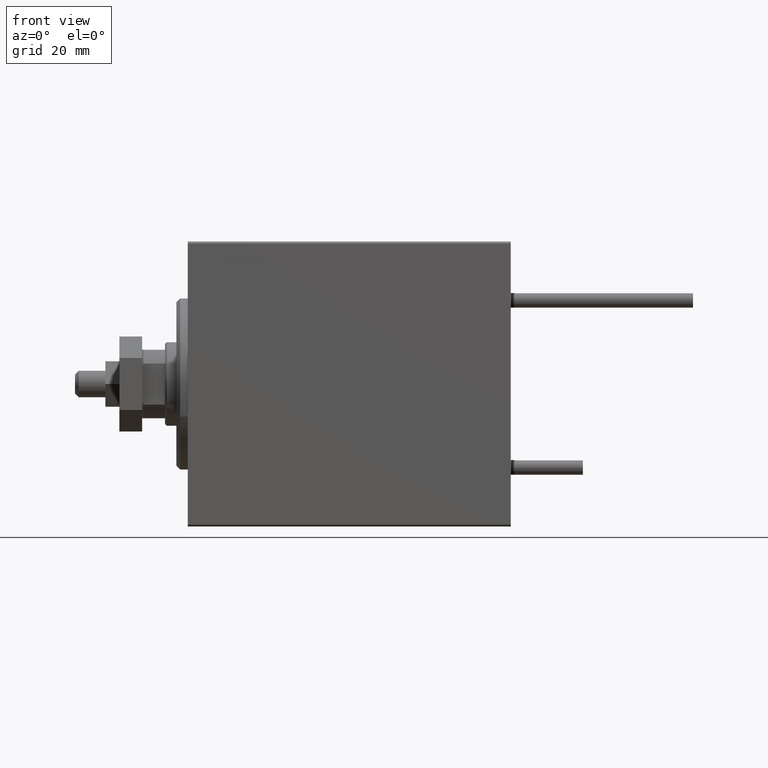
[diagram: clean part render]
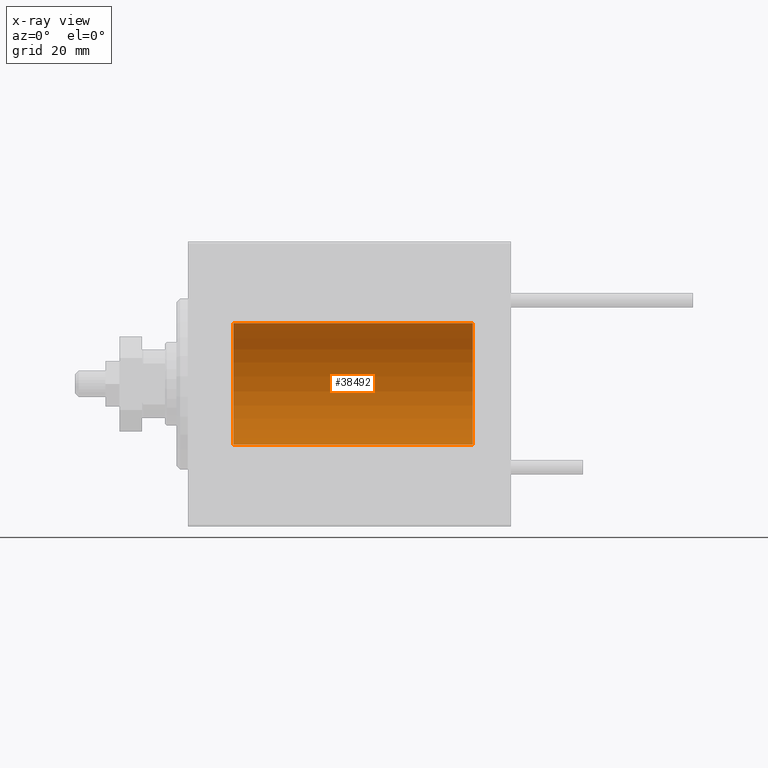
[diagram: x-ray — body ghosted, one internal face saturated and labeled with its STEP entity id]
A machine part, front view, then the same camera in x-ray: the body is ghosted and one INTERNAL B-rep face — a face not visible from any outside direction — is saturated and labeled: STEP entity #38492.
In plain terms, the highlighted cylindrical surface (partial cylindrical patch) has radius 16 mm, axis along (-1, -0, -0).
Its self-contained STEP definition (entity closure, byte-faithful):
#797 = CARTESIAN_POINT ( 'NONE',  ( 75.00000000000000000, 1.959434878635765131E-15, -16.00000000000000000 ) ) ;
#1518 = DIRECTION ( 'NONE',  ( -1.000000000000000000, -0.000000000000000000, -0.000000000000000000 ) ) ;
#2060 = EDGE_CURVE ( 'NONE', #39630, #36622, #11472, .T. ) ;
#2685 = CIRCLE ( 'NONE', #8306, 16.00000000000000000 ) ;
#3511 = DIRECTION ( 'NONE',  ( -1.000000000000000000, 0.000000000000000000, 0.000000000000000000 ) ) ;
#4800 = ORIENTED_EDGE ( 'NONE', *, *, #2060, .T. ) ;
#5037 = CARTESIAN_POINT ( 'NONE',  ( 75.00000000000000000, 0.000000000000000000, 16.00000000000000000 ) ) ;
#8306 = AXIS2_PLACEMENT_3D ( 'NONE', #40452, #21290, #33125 ) ;
#8345 = VECTOR ( 'NONE', #31773, 1000.000000000000000 ) ;
#8842 = DIRECTION ( 'NONE',  ( 0.000000000000000000, 0.000000000000000000, 1.000000000000000000 ) ) ;
#8987 = DIRECTION ( 'NONE',  ( -1.000000000000000000, -0.000000000000000000, -0.000000000000000000 ) ) ;
#9290 = EDGE_CURVE ( 'NONE', #27114, #39630, #31932, .T. ) ;
#11472 = CIRCLE ( 'NONE', #39649, 16.00000000000000000 ) ;
#12711 = EDGE_CURVE ( 'NONE', #27114, #48449, #2685, .T. ) ;
#12879 = FACE_OUTER_BOUND ( 'NONE', #26901, .T. ) ;
#14030 = EDGE_CURVE ( 'NONE', #48449, #36622, #19692, .T. ) ;
#18672 = CARTESIAN_POINT ( 'NONE',  ( 11.99999999999999645, 0.000000000000000000, 0.000000000000000000 ) ) ;
#19692 = LINE ( 'NONE', #39102, #8345 ) ;
#21290 = DIRECTION ( 'NONE',  ( -1.000000000000000000, 0.000000000000000000, 0.000000000000000000 ) ) ;
#26901 = EDGE_LOOP ( 'NONE', ( #32771, #28784, #49668, #4800 ) ) ;
#27114 = VERTEX_POINT ( 'NONE', #5037 ) ;
#27917 = CARTESIAN_POINT ( 'NONE',  ( 11.99999999999999645, 1.959434878635765131E-15, -16.00000000000000000 ) ) ;
#28784 = ORIENTED_EDGE ( 'NONE', *, *, #12711, .F. ) ;
#29945 = VECTOR ( 'NONE', #8987, 1000.000000000000000 ) ;
#30258 = DIRECTION ( 'NONE',  ( 0.000000000000000000, 0.000000000000000000, 1.000000000000000000 ) ) ;
#31773 = DIRECTION ( 'NONE',  ( -1.000000000000000000, -0.000000000000000000, -0.000000000000000000 ) ) ;
#31932 = LINE ( 'NONE', #47354, #29945 ) ;
#32771 = ORIENTED_EDGE ( 'NONE', *, *, #14030, .F. ) ;
#33125 = DIRECTION ( 'NONE',  ( 0.000000000000000000, 0.000000000000000000, 1.000000000000000000 ) ) ;
#36622 = VERTEX_POINT ( 'NONE', #27917 ) ;
#38492 = ADVANCED_FACE ( 'NONE', ( #12879 ), #44393, .F. ) ;
#39102 = CARTESIAN_POINT ( 'NONE',  ( 75.00000000000000000, 1.959434878635765131E-15, -16.00000000000000000 ) ) ;
#39630 = VERTEX_POINT ( 'NONE', #43332 ) ;
#39649 = AXIS2_PLACEMENT_3D ( 'NONE', #18672, #3511, #30258 ) ;
#40114 = CARTESIAN_POINT ( 'NONE',  ( 75.00000000000000000, 0.000000000000000000, 0.000000000000000000 ) ) ;
#40452 = CARTESIAN_POINT ( 'NONE',  ( 75.00000000000000000, 0.000000000000000000, 0.000000000000000000 ) ) ;
#43332 = CARTESIAN_POINT ( 'NONE',  ( 11.99999999999999645, 0.000000000000000000, 16.00000000000000000 ) ) ;
#44393 = CYLINDRICAL_SURFACE ( 'NONE', #47846, 16.00000000000000000 ) ;
#47354 = CARTESIAN_POINT ( 'NONE',  ( 75.00000000000000000, 0.000000000000000000, 16.00000000000000000 ) ) ;
#47846 = AXIS2_PLACEMENT_3D ( 'NONE', #40114, #1518, #8842 ) ;
#48449 = VERTEX_POINT ( 'NONE', #797 ) ;
#49668 = ORIENTED_EDGE ( 'NONE', *, *, #9290, .T. ) ;